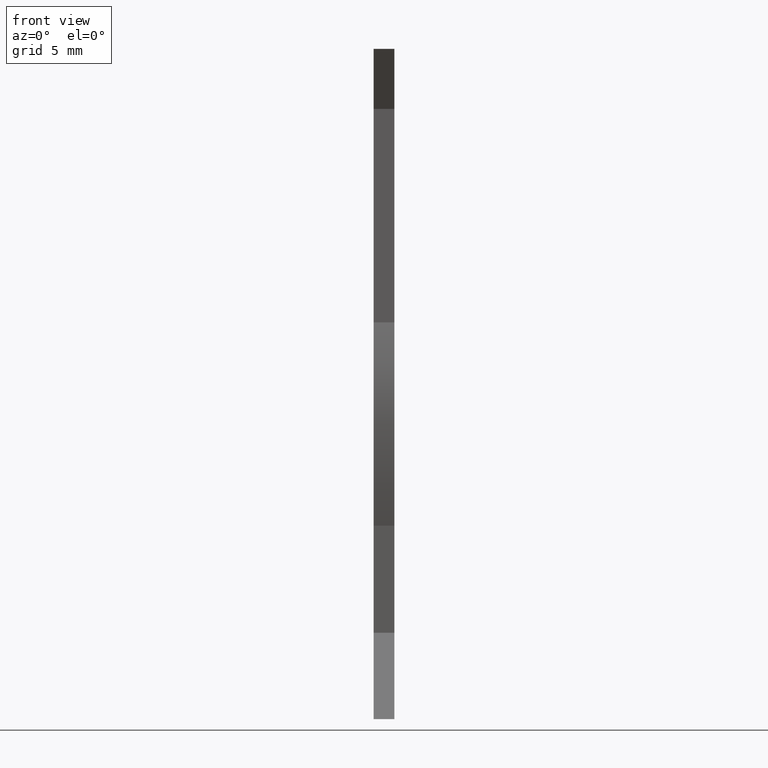
[diagram: clean part render]
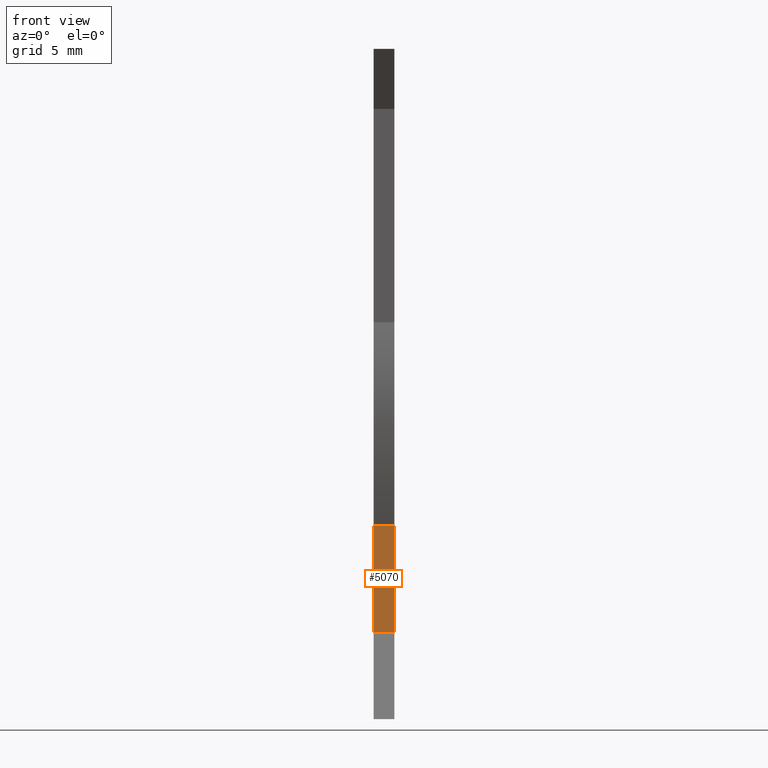
[diagram: same view with one face highlighted and labeled with its STEP entity id]
A machine part, front view. The second image highlights one B-rep face of the part: STEP entity #5070.
In plain terms, the highlighted planar face has unit normal (-0, 1, 0).
Its self-contained STEP definition (entity closure, byte-faithful):
#130=CARTESIAN_POINT('',(26.3821672216756,-32.0892042425621,54.17));
#140=VERTEX_POINT('',#130);
#170=CARTESIAN_POINT('',(26.3821672216756,-32.0892042425621,50.9699976))
;
#180=DIRECTION('',(0.,0.,1.));
#190=VECTOR('',#180,1.);
#200=LINE('',#170,#190);
#210=CARTESIAN_POINT('',(26.3821672216756,-32.0892042425621,53.17));
#220=VERTEX_POINT('',#210);
#230=EDGE_CURVE('',#220,#140,#200,.T.);
#1440=CARTESIAN_POINT('',(26.3821672216756,-37.2400792696525,54.17));
#1450=VERTEX_POINT('',#1440);
#1480=CARTESIAN_POINT('',(26.3821672216756,-12.1300507694265,54.17));
#1490=DIRECTION('',(0.,-1.,0.));
#1500=VECTOR('',#1490,1.);
#1510=LINE('',#1480,#1500);
#1520=EDGE_CURVE('',#140,#1450,#1510,.T.);
#3660=CARTESIAN_POINT('',(26.3821672216756,-12.1300507694265,53.17));
#3670=DIRECTION('',(0.,-1.,0.));
#3680=VECTOR('',#3670,1.);
#3690=LINE('',#3660,#3680);
#3700=CARTESIAN_POINT('',(26.3821672216756,-37.2400792696525,53.17));
#3710=VERTEX_POINT('',#3700);
#3720=EDGE_CURVE('',#220,#3710,#3690,.T.);
#4210=CARTESIAN_POINT('',(26.3821672216756,-37.2400792696525,53.17));
#4220=DIRECTION('',(0.,0.,1.));
#4230=VECTOR('',#4220,1.);
#4240=LINE('',#4210,#4230);
#4250=EDGE_CURVE('',#3710,#1450,#4240,.T.);
#4960=CARTESIAN_POINT('',(26.3821672216756,-16.4457965819755,50.9699976)
);
#4970=DIRECTION('',(1.,0.,0.));
#4980=DIRECTION('',(0.,-1.,0.));
#4990=AXIS2_PLACEMENT_3D('',#4960,#4970,#4980);
#5000=PLANE('',#4990);
#5010=ORIENTED_EDGE('',*,*,#3720,.T.);
#5020=ORIENTED_EDGE('',*,*,#230,.F.);
#5030=ORIENTED_EDGE('',*,*,#1520,.F.);
#5040=ORIENTED_EDGE('',*,*,#4250,.T.);
#5050=EDGE_LOOP('',(#5040,#5030,#5020,#5010));
#5060=FACE_OUTER_BOUND('',#5050,.T.);
#5070=ADVANCED_FACE('',(#5060),#5000,.F.);